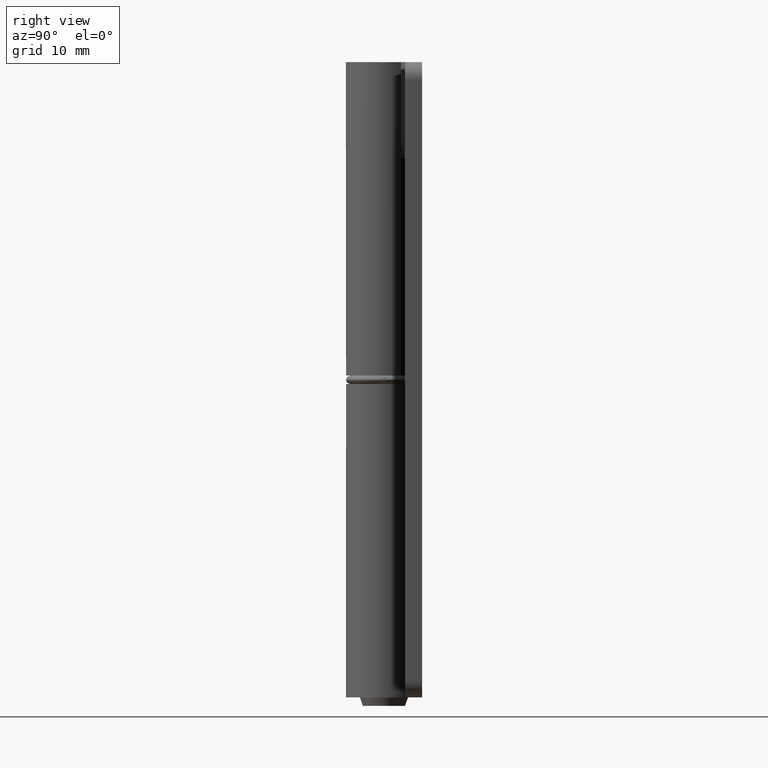
[diagram: clean part render]
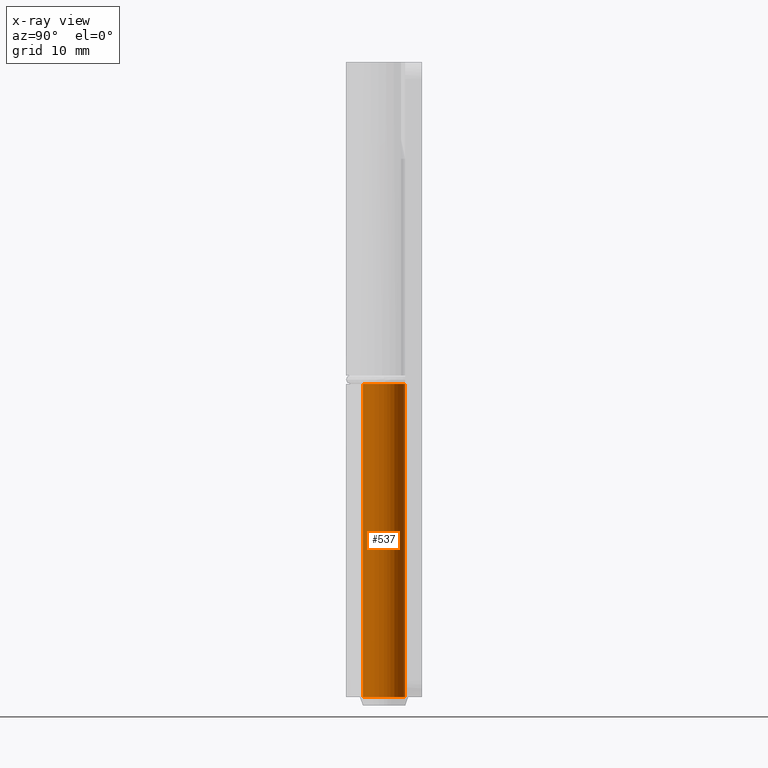
[diagram: x-ray — body ghosted, one internal face saturated and labeled with its STEP entity id]
A machine part, right view, then the same camera in x-ray: the body is ghosted and one INTERNAL B-rep face — a face not visible from any outside direction — is saturated and labeled: STEP entity #537.
In plain terms, the highlighted face is a freeform B-spline surface patch.
Its self-contained STEP definition (entity closure, byte-faithful):
#404=CARTESIAN_POINT('',(2.500000000000145,0.0,0.0));
#405=VERTEX_POINT('',#404);
#406=CARTESIAN_POINT('',(0.152621348857186,-2.495336996053586,-3.330669E-016));
#407=VERTEX_POINT('',#406);
#408=CARTESIAN_POINT('',(2.500000000000145,0.0,0.0));
#409=CARTESIAN_POINT('',(2.500000000000144,-2.351765167245455,0.0));
#410=CARTESIAN_POINT('',(0.152621348857187,-2.495336996053586,0.0));
#418=(BOUNDED_CURVE()B_SPLINE_CURVE(2,(#408,#409,#410),.UNSPECIFIED.,.F.,.U.)B_SPLINE_CURVE_WITH_KNOTS((3,3),(0.500000000000000,0.739332962240583),.UNSPECIFIED.)CURVE()GEOMETRIC_REPRESENTATION_ITEM()RATIONAL_B_SPLINE_CURVE((1.0,0.719603993284789,0.976072041670232))REPRESENTATION_ITEM(''));
#419=EDGE_CURVE('',#405,#407,#418,.T.);
#438=CARTESIAN_POINT('',(-0.152621348857186,2.495336996053586,-3.330669E-016));
#439=VERTEX_POINT('',#438);
#453=CARTESIAN_POINT('',(-0.152621348857187,2.495336996053586,0.0));
#454=CARTESIAN_POINT('',(-0.076381908256522,2.500000000000145,0.0));
#455=CARTESIAN_POINT('',(0.0,2.500000000000145,0.0));
#456=CARTESIAN_POINT('',(2.500000000000144,2.500000000000144,0.0));
#457=CARTESIAN_POINT('',(2.500000000000145,0.0,0.0));
#465=(BOUNDED_CURVE()B_SPLINE_CURVE(2,(#453,#454,#455,#456,#457),.UNSPECIFIED.,.F.,.U.)B_SPLINE_CURVE_WITH_KNOTS((3,2,3),(0.239332962240583,0.250000000000000,0.500000000000000),.UNSPECIFIED.)CURVE()GEOMETRIC_REPRESENTATION_ITEM()RATIONAL_B_SPLINE_CURVE((0.976072041670233,0.987502787901759,1.0,0.707106781186548,1.0))REPRESENTATION_ITEM(''));
#466=EDGE_CURVE('',#439,#405,#465,.T.);
#471=CARTESIAN_POINT('',(-0.152621348837151,2.495336996054811,37.925000000000011));
#472=CARTESIAN_POINT('',(2.342715647217660,2.647958344891962,37.925000000000004));
#473=CARTESIAN_POINT('',(2.495336996054811,0.152621348837151,37.925000000000011));
#474=CARTESIAN_POINT('',(2.647958344891962,-2.342715647217660,37.925000000000004));
#475=CARTESIAN_POINT('',(0.152621348837151,-2.495336996054811,37.925000000000011));
#476=CARTESIAN_POINT('',(-0.152621348837151,2.495336996054811,-0.948124999999997));
#477=CARTESIAN_POINT('',(2.342715647217660,2.647958344891962,-0.948124999999997));
#478=CARTESIAN_POINT('',(2.495336996054811,0.152621348837151,-0.948124999999997));
#479=CARTESIAN_POINT('',(2.647958344891962,-2.342715647217660,-0.948124999999997));
#480=CARTESIAN_POINT('',(0.152621348837151,-2.495336996054811,-0.948124999999997));
#488=(BOUNDED_SURFACE()B_SPLINE_SURFACE(2,1,((#471,#476),(#472,#477),(#473,#478),(#474,#479),(#475,#480)),.UNSPECIFIED.,.F.,.F.,.U.)B_SPLINE_SURFACE_WITH_KNOTS((3,2,3),(2,2),(0.0,4.142135623731189,8.284271247462378),(0.0,38.873125000000009),.UNSPECIFIED.)GEOMETRIC_REPRESENTATION_ITEM()RATIONAL_B_SPLINE_SURFACE(((1.0,1.0),(0.707106781186548,0.707106781186548),(1.0,1.0),(0.707106781186548,0.707106781186548),(1.0,1.0)))REPRESENTATION_ITEM('')SURFACE());
#489=ORIENTED_EDGE('',*,*,#466,.F.);
#490=CARTESIAN_POINT('',(-0.152621348857186,2.495336996053586,37.0));
#491=VERTEX_POINT('',#490);
#492=CARTESIAN_POINT('',(-0.152621348857186,2.495336996053586,37.0));
#493=CARTESIAN_POINT('',(-0.152621348857186,2.495336996053586,-3.330669E-016));
#494=QUASI_UNIFORM_CURVE('',1,(#492,#493),.UNSPECIFIED.,.F.,.U.);
#495=EDGE_CURVE('',#491,#439,#494,.T.);
#496=ORIENTED_EDGE('',*,*,#495,.F.);
#497=CARTESIAN_POINT('',(2.500000000000145,0.0,37.0));
#498=VERTEX_POINT('',#497);
#499=CARTESIAN_POINT('',(-0.152621348857187,2.495336996053586,37.0));
#500=CARTESIAN_POINT('',(-0.076381908256522,2.500000000000145,37.0));
#501=CARTESIAN_POINT('',(0.0,2.500000000000145,37.0));
#502=CARTESIAN_POINT('',(2.500000000000144,2.500000000000144,37.0));
#503=CARTESIAN_POINT('',(2.500000000000145,0.0,37.0));
#511=(BOUNDED_CURVE()B_SPLINE_CURVE(2,(#499,#500,#501,#502,#503),.UNSPECIFIED.,.F.,.U.)B_SPLINE_CURVE_WITH_KNOTS((3,2,3),(0.239332962240583,0.250000000000000,0.500000000000000),.UNSPECIFIED.)CURVE()GEOMETRIC_REPRESENTATION_ITEM()RATIONAL_B_SPLINE_CURVE((0.976072041670233,0.987502787901759,1.0,0.707106781186548,1.0))REPRESENTATION_ITEM(''));
#512=EDGE_CURVE('',#491,#498,#511,.T.);
#513=ORIENTED_EDGE('',*,*,#512,.T.);
#514=CARTESIAN_POINT('',(0.152621348857186,-2.495336996053586,37.0));
#515=VERTEX_POINT('',#514);
#516=CARTESIAN_POINT('',(2.500000000000145,0.0,37.0));
#517=CARTESIAN_POINT('',(2.500000000000144,-2.351765167245455,36.999999999999993));
#518=CARTESIAN_POINT('',(0.152621348857187,-2.495336996053586,37.0));
#526=(BOUNDED_CURVE()B_SPLINE_CURVE(2,(#516,#517,#518),.UNSPECIFIED.,.F.,.U.)B_SPLINE_CURVE_WITH_KNOTS((3,3),(0.500000000000000,0.739332962240583),.UNSPECIFIED.)CURVE()GEOMETRIC_REPRESENTATION_ITEM()RATIONAL_B_SPLINE_CURVE((1.0,0.719603993284789,0.976072041670232))REPRESENTATION_ITEM(''));
#527=EDGE_CURVE('',#498,#515,#526,.T.);
#528=ORIENTED_EDGE('',*,*,#527,.T.);
#529=CARTESIAN_POINT('',(0.152621348857186,-2.495336996053586,37.0));
#530=CARTESIAN_POINT('',(0.152621348857186,-2.495336996053586,-3.330669E-016));
#531=QUASI_UNIFORM_CURVE('',1,(#529,#530),.UNSPECIFIED.,.F.,.U.);
#532=EDGE_CURVE('',#515,#407,#531,.T.);
#533=ORIENTED_EDGE('',*,*,#532,.T.);
#534=ORIENTED_EDGE('',*,*,#419,.F.);
#535=EDGE_LOOP('',(#489,#496,#513,#528,#533,#534));
#536=FACE_OUTER_BOUND('',#535,.T.);
#537=ADVANCED_FACE('',(#536),#488,.T.);